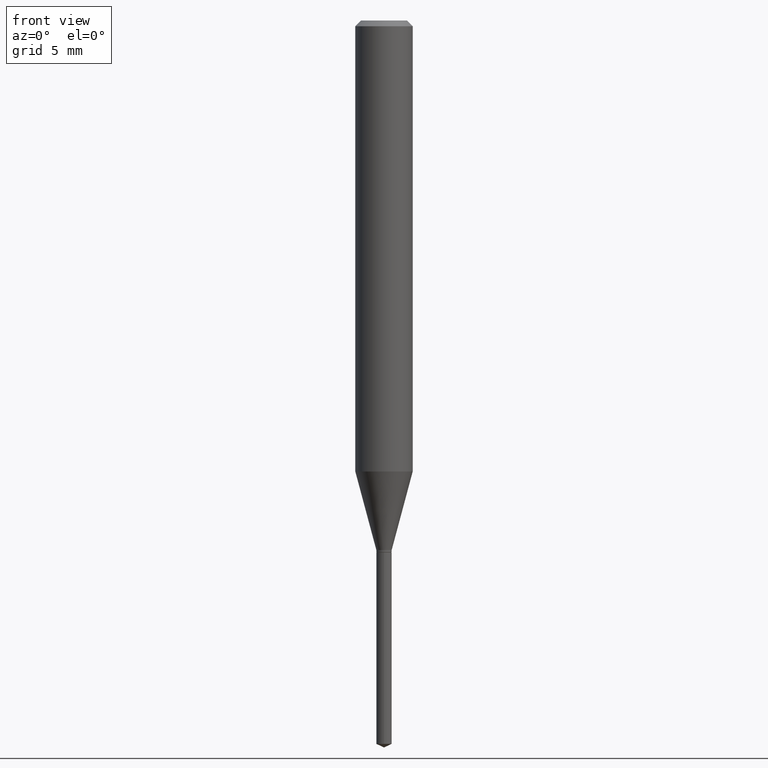
[diagram: clean part render]
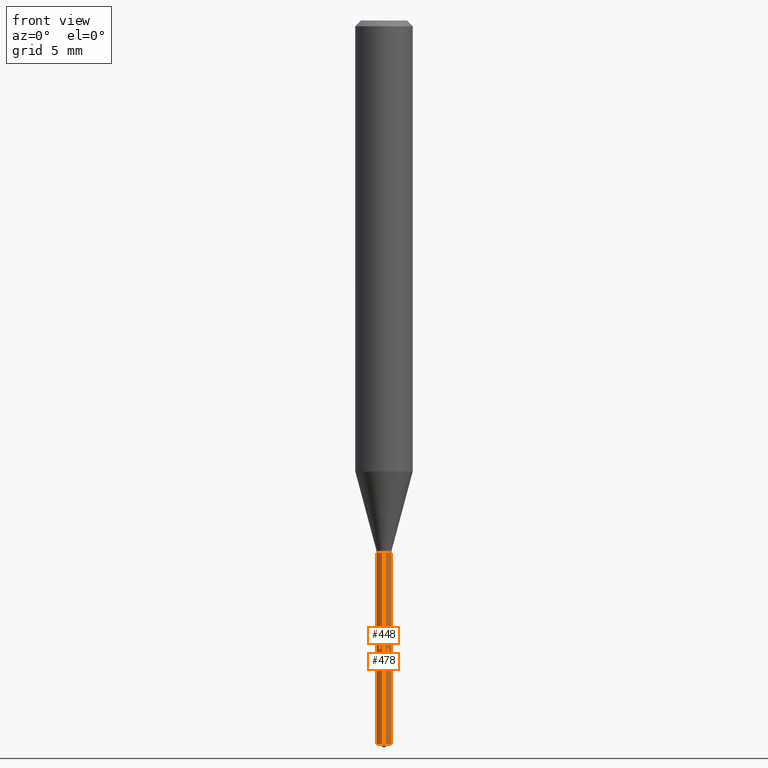
[diagram: same view with one multi-face feature highlighted, each face labeled with its STEP entity id]
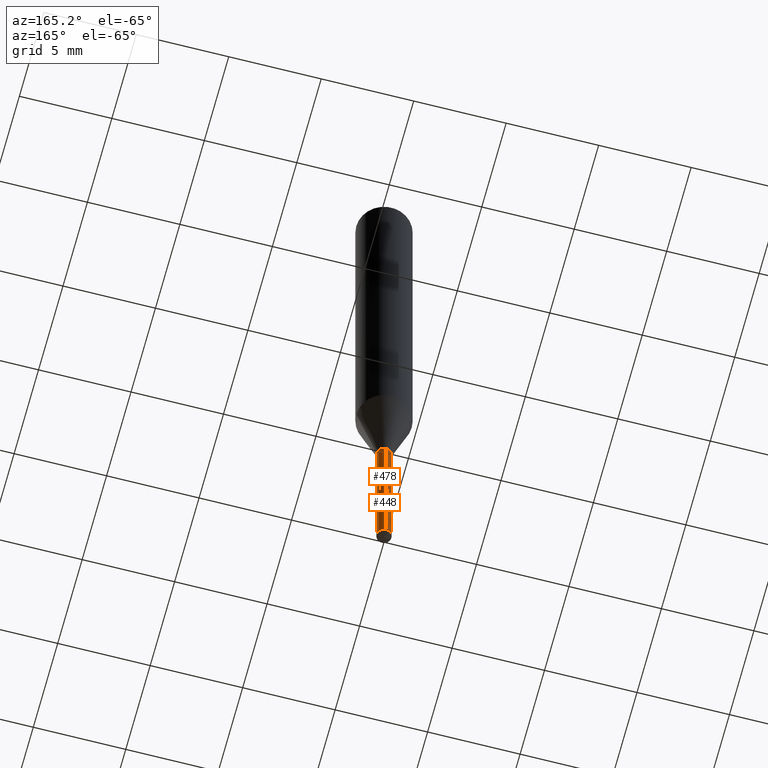
[diagram: same view with one multi-face feature highlighted, each face labeled with its STEP entity id]
A machine part, front view. The highlighted faces form ONE feature: a constant-radius fillet chain: 2 tangent blend faces with common blend radius 0.4 mm. The faces share edges in the B-rep.
A second angle (auxiliary view) of the same feature is appended — it is thin or edge-on in the first view.
Their STEP definitions:
[1] entity #478 (Cylinder):
#4 = EDGE_CURVE ( 'NONE', #140, #334, #54, .T. ) ;
#21 = DIRECTION ( 'NONE',  ( -2.445470214571802116E-29, 3.491479321953280158E-15, 1.000000000000000000 ) ) ;
#37 = ORIENTED_EDGE ( 'NONE', *, *, #4, .F. ) ;
#54 = LINE ( 'NONE', #267, #364 ) ;
#56 = LINE ( 'NONE', #317, #282 ) ;
#64 = DIRECTION ( 'NONE',  ( -6.982962677686265922E-15, -1.000000000000000000, 0.000000000000000000 ) ) ;
#70 = VERTEX_POINT ( 'NONE', #193 ) ;
#76 = EDGE_LOOP ( 'NONE', ( #361, #271, #174, #37 ) ) ;
#103 = FACE_OUTER_BOUND ( 'NONE', #76, .T. ) ;
#117 = DIRECTION ( 'NONE',  ( -6.982962677686265922E-15, -1.000000000000000000, 0.000000000000000000 ) ) ;
#125 = DIRECTION ( 'NONE',  ( -2.445470214571802116E-29, 3.491479321953280158E-15, 1.000000000000000000 ) ) ;
#135 = CARTESIAN_POINT ( 'NONE',  ( 3.640706068092362189E-29, -5.197961790208923730E-15, -1.488755654384058769 ) ) ;
#137 = CIRCLE ( 'NONE', #427, 0.01575000000000000011 ) ;
#140 = VERTEX_POINT ( 'NONE', #441 ) ;
#150 = EDGE_CURVE ( 'NONE', #140, #70, #137, .T. ) ;
#167 = DIRECTION ( 'NONE',  ( -2.445470214571802396E-29, 3.491479321953280158E-15, 1.000000000000000000 ) ) ;
#172 = EDGE_CURVE ( 'NONE', #70, #181, #56, .T. ) ;
#174 = ORIENTED_EDGE ( 'NONE', *, *, #230, .F. ) ;
#181 = VERTEX_POINT ( 'NONE', #393 ) ;
#193 = CARTESIAN_POINT ( 'NONE',  ( 1.119104808822521909E-16, 0.01574999999999480288, -1.488755654384058769 ) ) ;
#230 = EDGE_CURVE ( 'NONE', #334, #181, #446, .T. ) ;
#242 = CARTESIAN_POINT ( 'NONE',  ( 2.676565608369631794E-29, -3.821426325363822773E-15, -1.094499999999999806 ) ) ;
#267 = CARTESIAN_POINT ( 'NONE',  ( -1.099816621735319341E-16, -0.01575000000000382344, -1.094499999999999806 ) ) ;
#271 = ORIENTED_EDGE ( 'NONE', *, *, #172, .T. ) ;
#280 = DIRECTION ( 'NONE',  ( -2.445470214571802116E-29, 3.491479321953280158E-15, 1.000000000000000000 ) ) ;
#282 = VECTOR ( 'NONE', #459, 39.37007874015748143 ) ;
#307 = AXIS2_PLACEMENT_3D ( 'NONE', #242, #21, #424 ) ;
#317 = CARTESIAN_POINT ( 'NONE',  ( 1.119104808822425274E-16, 0.01574999999999617678, -1.094499999999999806 ) ) ;
#334 = VERTEX_POINT ( 'NONE', #371 ) ;
#355 = AXIS2_PLACEMENT_3D ( 'NONE', #463, #125, #117 ) ;
#361 = ORIENTED_EDGE ( 'NONE', *, *, #150, .T. ) ;
#364 = VECTOR ( 'NONE', #167, 39.37007874015748143 ) ;
#371 = CARTESIAN_POINT ( 'NONE',  ( -1.099816621735319341E-16, -0.01575000000000382344, -1.094499999999999806 ) ) ;
#393 = CARTESIAN_POINT ( 'NONE',  ( 1.119104808822522402E-16, 0.01574999999999618025, -1.094499999999999806 ) ) ;
#424 = DIRECTION ( 'NONE',  ( -6.982962677686265922E-15, -1.000000000000000000, 0.000000000000000000 ) ) ;
#427 = AXIS2_PLACEMENT_3D ( 'NONE', #135, #280, #64 ) ;
#429 = CYLINDRICAL_SURFACE ( 'NONE', #307, 0.01575000000000000011 ) ;
#441 = CARTESIAN_POINT ( 'NONE',  ( -1.099816621735222829E-16, -0.01575000000000520081, -1.488755654384058769 ) ) ;
#446 = CIRCLE ( 'NONE', #355, 0.01575000000000000011 ) ;
#459 = DIRECTION ( 'NONE',  ( -2.445470214571802396E-29, 3.491479321953280158E-15, 1.000000000000000000 ) ) ;
#463 = CARTESIAN_POINT ( 'NONE',  ( 2.676565608369631794E-29, -3.821426325363822773E-15, -1.094499999999999806 ) ) ;
#478 = ADVANCED_FACE ( 'NONE', ( #103 ), #429, .T. ) ;
[2] entity #448 (Cylinder):
#4 = EDGE_CURVE ( 'NONE', #140, #334, #54, .T. ) ;
#15 = DIRECTION ( 'NONE',  ( -6.982962677686265922E-15, -1.000000000000000000, 0.000000000000000000 ) ) ;
#43 = FACE_OUTER_BOUND ( 'NONE', #487, .T. ) ;
#54 = LINE ( 'NONE', #267, #364 ) ;
#56 = LINE ( 'NONE', #317, #282 ) ;
#70 = VERTEX_POINT ( 'NONE', #193 ) ;
#77 = DIRECTION ( 'NONE',  ( -6.982962677686265922E-15, -1.000000000000000000, 0.000000000000000000 ) ) ;
#84 = DIRECTION ( 'NONE',  ( -2.445470214571802116E-29, 3.491479321953280158E-15, 1.000000000000000000 ) ) ;
#111 = DIRECTION ( 'NONE',  ( -2.445470214571802116E-29, 3.491479321953280158E-15, 1.000000000000000000 ) ) ;
#115 = AXIS2_PLACEMENT_3D ( 'NONE', #414, #84, #381 ) ;
#116 = CARTESIAN_POINT ( 'NONE',  ( 3.640706068092362189E-29, -5.197961790208923730E-15, -1.488755654384058769 ) ) ;
#140 = VERTEX_POINT ( 'NONE', #441 ) ;
#167 = DIRECTION ( 'NONE',  ( -2.445470214571802396E-29, 3.491479321953280158E-15, 1.000000000000000000 ) ) ;
#172 = EDGE_CURVE ( 'NONE', #70, #181, #56, .T. ) ;
#181 = VERTEX_POINT ( 'NONE', #393 ) ;
#193 = CARTESIAN_POINT ( 'NONE',  ( 1.119104808822521909E-16, 0.01574999999999480288, -1.488755654384058769 ) ) ;
#195 = CYLINDRICAL_SURFACE ( 'NONE', #115, 0.01575000000000000011 ) ;
#208 = ORIENTED_EDGE ( 'NONE', *, *, #172, .F. ) ;
#218 = CARTESIAN_POINT ( 'NONE',  ( 2.676565608369631794E-29, -3.821426325363822773E-15, -1.094499999999999806 ) ) ;
#248 = AXIS2_PLACEMENT_3D ( 'NONE', #116, #409, #77 ) ;
#259 = EDGE_CURVE ( 'NONE', #181, #334, #467, .T. ) ;
#267 = CARTESIAN_POINT ( 'NONE',  ( -1.099816621735319341E-16, -0.01575000000000382344, -1.094499999999999806 ) ) ;
#282 = VECTOR ( 'NONE', #459, 39.37007874015748143 ) ;
#291 = ORIENTED_EDGE ( 'NONE', *, *, #438, .T. ) ;
#317 = CARTESIAN_POINT ( 'NONE',  ( 1.119104808822425274E-16, 0.01574999999999617678, -1.094499999999999806 ) ) ;
#334 = VERTEX_POINT ( 'NONE', #371 ) ;
#337 = ORIENTED_EDGE ( 'NONE', *, *, #259, .F. ) ;
#356 = CIRCLE ( 'NONE', #248, 0.01575000000000000011 ) ;
#364 = VECTOR ( 'NONE', #167, 39.37007874015748143 ) ;
#371 = CARTESIAN_POINT ( 'NONE',  ( -1.099816621735319341E-16, -0.01575000000000382344, -1.094499999999999806 ) ) ;
#381 = DIRECTION ( 'NONE',  ( -6.982962677686265922E-15, -1.000000000000000000, 0.000000000000000000 ) ) ;
#393 = CARTESIAN_POINT ( 'NONE',  ( 1.119104808822522402E-16, 0.01574999999999618025, -1.094499999999999806 ) ) ;
#409 = DIRECTION ( 'NONE',  ( -2.445470214571802116E-29, 3.491479321953280158E-15, 1.000000000000000000 ) ) ;
#414 = CARTESIAN_POINT ( 'NONE',  ( 2.676565608369631794E-29, -3.821426325363822773E-15, -1.094499999999999806 ) ) ;
#432 = ORIENTED_EDGE ( 'NONE', *, *, #4, .T. ) ;
#438 = EDGE_CURVE ( 'NONE', #70, #140, #356, .T. ) ;
#441 = CARTESIAN_POINT ( 'NONE',  ( -1.099816621735222829E-16, -0.01575000000000520081, -1.488755654384058769 ) ) ;
#448 = ADVANCED_FACE ( 'NONE', ( #43 ), #195, .T. ) ;
#459 = DIRECTION ( 'NONE',  ( -2.445470214571802396E-29, 3.491479321953280158E-15, 1.000000000000000000 ) ) ;
#467 = CIRCLE ( 'NONE', #484, 0.01575000000000000011 ) ;
#484 = AXIS2_PLACEMENT_3D ( 'NONE', #218, #111, #15 ) ;
#487 = EDGE_LOOP ( 'NONE', ( #208, #291, #432, #337 ) ) ;